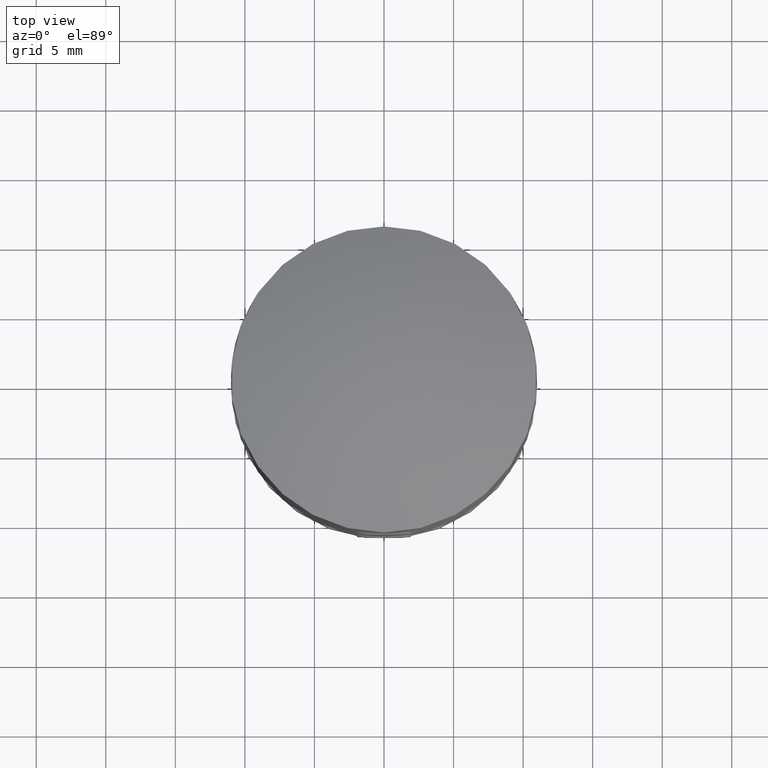
[diagram: clean part render]
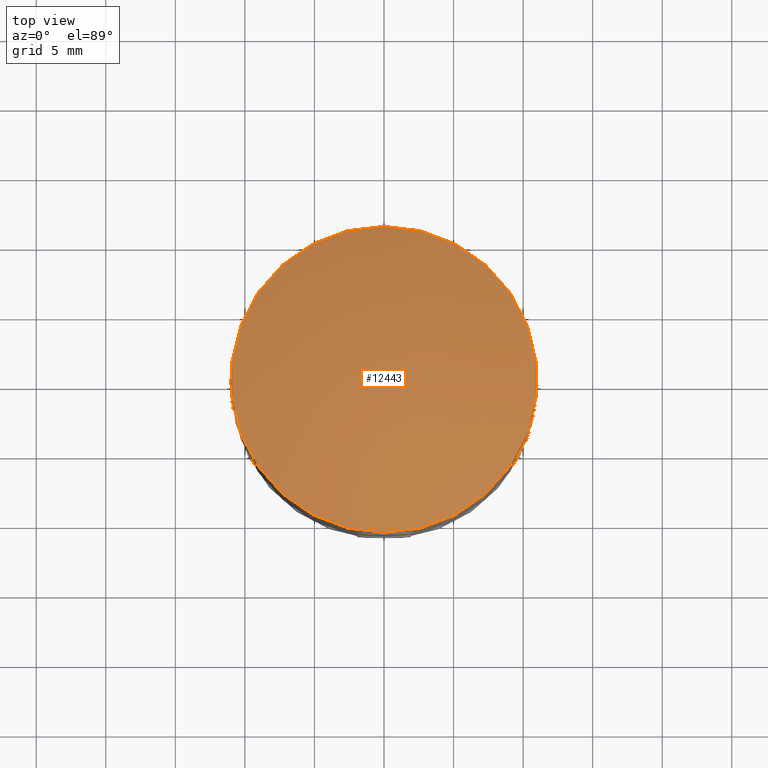
[diagram: same view with one face highlighted and labeled with its STEP entity id]
A machine part, top view. The second image highlights one B-rep face of the part: STEP entity #12443.
In plain terms, the highlighted spherical surface has radius 28 mm.
Its self-contained STEP definition (entity closure, byte-faithful):
#705 = EDGE_LOOP ( 'NONE', ( #21297 ) ) ;
#1416 = DIRECTION ( 'NONE',  ( 0.000000000000000000, 1.000000000000000000, 0.000000000000000000 ) ) ;
#2860 = AXIS2_PLACEMENT_3D ( 'NONE', #20460, #18881, #19028 ) ;
#5625 = CIRCLE ( 'NONE', #18282, 10.99999999999999645 ) ;
#6014 = FACE_OUTER_BOUND ( 'NONE', #705, .T. ) ;
#6359 = VERTEX_POINT ( 'NONE', #14954 ) ;
#7600 = SPHERICAL_SURFACE ( 'NONE', #2860, 28.00000000000000000 ) ;
#11571 = DIRECTION ( 'NONE',  ( -0.000000000000000000, 1.020538999289461417E-16, -1.000000000000000000 ) ) ;
#12443 = ADVANCED_FACE ( 'NONE', ( #6014 ), #7600, .T. ) ;
#14954 = CARTESIAN_POINT ( 'NONE',  ( 0.000000000000000000, 10.99999999999999645, 23.74878637916746627 ) ) ;
#18282 = AXIS2_PLACEMENT_3D ( 'NONE', #21697, #11571, #1416 ) ;
#18881 = DIRECTION ( 'NONE',  ( 1.000000000000000000, 0.000000000000000000, -0.000000000000000000 ) ) ;
#18895 = EDGE_CURVE ( 'NONE', #6359, #6359, #5625, .T. ) ;
#19028 = DIRECTION ( 'NONE',  ( 0.000000000000000000, 1.000000000000000000, 1.084202172485504434E-16 ) ) ;
#20460 = CARTESIAN_POINT ( 'NONE',  ( 0.000000000000000000, 0.000000000000000000, -2.000000000000002665 ) ) ;
#21297 = ORIENTED_EDGE ( 'NONE', *, *, #18895, .F. ) ;
#21697 = CARTESIAN_POINT ( 'NONE',  ( 0.000000000000000000, -7.499723097387591609E-16, 23.74878637916746627 ) ) ;